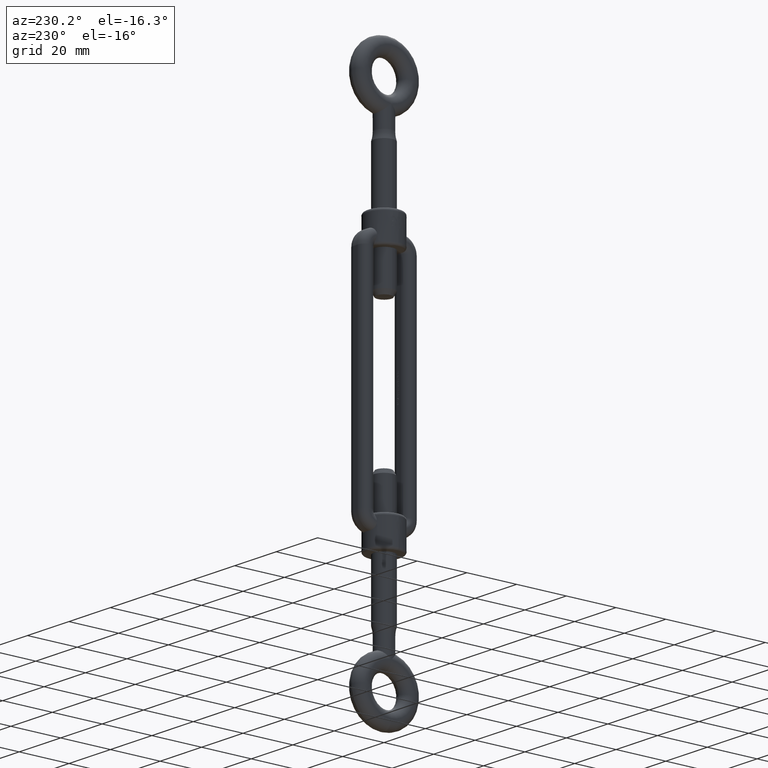
[diagram: clean part render]
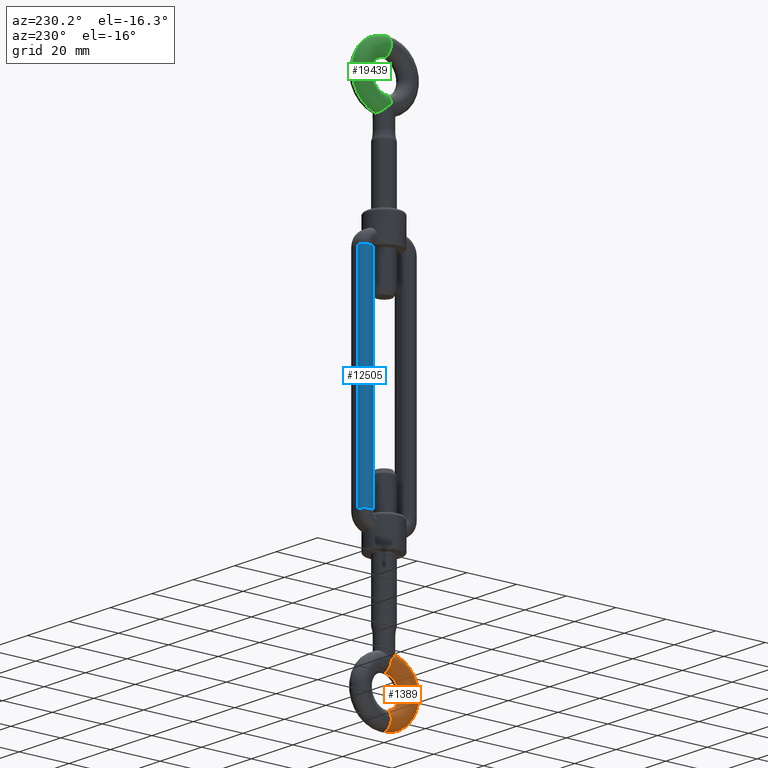
[diagram: same view with three faces highlighted in distinct colors, each labeled with its STEP entity id]
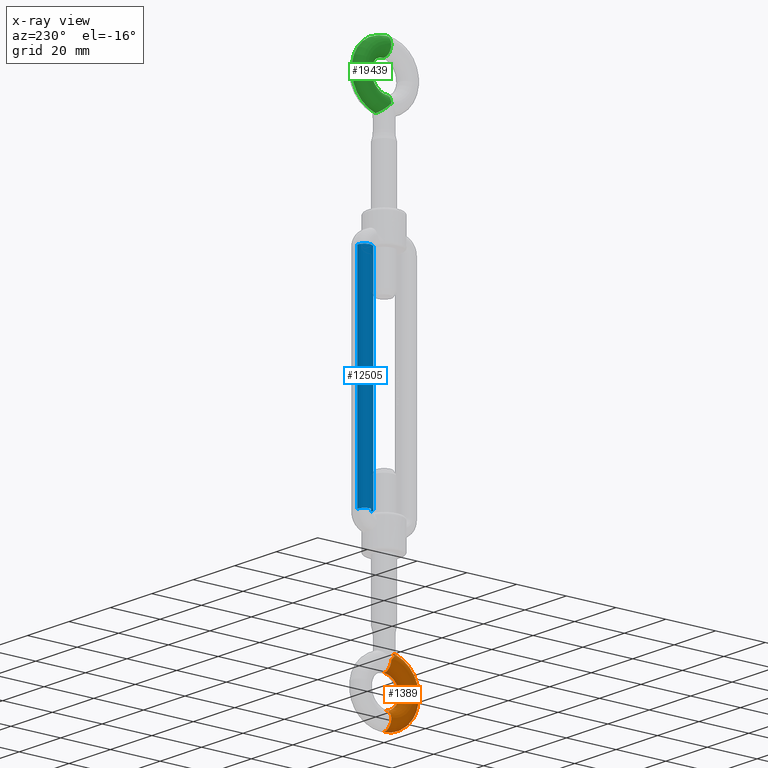
[diagram: x-ray of the same camera — body ghosted, the three highlighted faces saturated]
A machine part, auxiliary view with three faces highlighted in distinct colors.
The next image is the same camera in x-ray (body ghosted, the three faces saturated) — at least one of them is partly hidden behind the body in this view.
Their STEP definitions:

[orange] entity #1389 — the highlighted toroidal blend (fillet) surface has major radius 9.5 mm and minor (blend) radius 3.5 mm.
#746 = DIRECTION ( 'NONE',  ( -0.0000000000000000000, 1.423099621949589700E-016, -1.000000000000000000 ) ) ;
#842 = ORIENTED_EDGE ( 'NONE', *, *, #2792, .T. ) ;
#1058 = CARTESIAN_POINT ( 'NONE',  ( 1.349081180623005400, -23.76627742218699200, -3.236062293113232800 ) ) ;
#1122 = CARTESIAN_POINT ( 'NONE',  ( 0.0000000000000000000, -13.00000000000000000, -9.233182611505365700E-016 ) ) ;
#1198 = CARTESIAN_POINT ( 'NONE',  ( 3.038218404285675200, -25.16484901665855400, -1.756094671193148900 ) ) ;
#1277 = ORIENTED_EDGE ( 'NONE', *, *, #18612, .F. ) ;
#1389 = ADVANCED_FACE ( 'NONE', ( #6877 ), #16581, .T. ) ;
#2544 = CARTESIAN_POINT ( 'NONE',  ( 2.443482613927761900, -24.69173464210464900, -2.516274623144317600 ) ) ;
#2609 = CARTESIAN_POINT ( 'NONE',  ( 2.607361979316100700, -24.82386341213460000, -2.347188748251677600 ) ) ;
#2745 = DIRECTION ( 'NONE',  ( -0.0000000000000000000, 1.423099621949589700E-016, -1.000000000000000000 ) ) ;
#2792 = EDGE_CURVE ( 'NONE', #12631, #15722, #7817, .T. ) ;
#2979 = CARTESIAN_POINT ( 'NONE',  ( 0.0000000000000000000, -3.499999999999999600, 0.0000000000000000000 ) ) ;
#3210 = CIRCLE ( 'NONE', #10819, 6.000000000000000000 ) ;
#4128 = AXIS2_PLACEMENT_3D ( 'NONE', #2979, #7732, #18929 ) ;
#4267 = CARTESIAN_POINT ( 'NONE',  ( 0.3828062570465492500, -22.87582891786317800, -3.480333841708966400 ) ) ;
#4321 = ORIENTED_EDGE ( 'NONE', *, *, #16395, .T. ) ;
#4333 = CARTESIAN_POINT ( 'NONE',  ( 2.095466932062852300, -24.40545312497301500, -2.812696855382467400 ) ) ;
#4589 = CARTESIAN_POINT ( 'NONE',  ( 0.0000000000000000000, -7.000000000000000000, -9.233182611505367700E-016 ) ) ;
#4875 = ORIENTED_EDGE ( 'NONE', *, *, #17145, .F. ) ;
#5186 = DIRECTION ( 'NONE',  ( -0.0000000000000000000, 1.423099621949589700E-016, -1.000000000000000000 ) ) ;
#5311 = VERTEX_POINT ( 'NONE', #20476 ) ;
#5395 = EDGE_CURVE ( 'NONE', #12631, #7546, #6554, .T. ) ;
#5473 = CARTESIAN_POINT ( 'NONE',  ( 0.0000000000000000000, -13.00000000000000000, -1.351944640852110200E-015 ) ) ;
#5589 = CARTESIAN_POINT ( 'NONE',  ( 0.09442472551826826300, -22.59438317329421500, -3.500000000000000900 ) ) ;
#5660 = CARTESIAN_POINT ( 'NONE',  ( 1.541899136454527400, -23.93487640342227600, -3.149353212264888800 ) ) ;
#5852 = CARTESIAN_POINT ( 'NONE',  ( 0.9616300672361402000, -23.41878871928697600, -3.371555547608233300 ) ) ;
#6554 = CIRCLE ( 'NONE', #4128, 3.500000000000000000 ) ;
#6788 = CARTESIAN_POINT ( 'NONE',  ( 3.500000000000000000, -25.51998402554891100, -6.372052715275416000E-014 ) ) ;
#6877 = FACE_OUTER_BOUND ( 'NONE', #14070, .T. ) ;
#7250 = CARTESIAN_POINT ( 'NONE',  ( 3.499999999999995600, -25.51998402554891500, -0.2690677788774187300 ) ) ;
#7546 = VERTEX_POINT ( 'NONE', #4589 ) ;
#7732 = DIRECTION ( 'NONE',  ( -1.000000000000000000, 0.0000000000000000000, 0.0000000000000000000 ) ) ;
#7817 = CIRCLE ( 'NONE', #8463, 13.00000000000000000 ) ;
#8406 = DIRECTION ( 'NONE',  ( -1.224646799147353500E-016, 1.000000000000000000, 0.0000000000000000000 ) ) ;
#8426 = CIRCLE ( 'NONE', #12277, 3.499999999999999600 ) ;
#8463 = AXIS2_PLACEMENT_3D ( 'NONE', #5473, #746, #14932 ) ;
#8547 = CARTESIAN_POINT ( 'NONE',  ( 1.163414459189985500E-015, -22.50000000000000000, -2.703889281704220400E-015 ) ) ;
#8657 = CARTESIAN_POINT ( 'NONE',  ( 8.204153414298522800E-026, -22.50000000000000000, -3.500000000000001300 ) ) ;
#9481 = CARTESIAN_POINT ( 'NONE',  ( 7.347880794884117800E-016, -19.00000000000000000, -9.233182611505363700E-016 ) ) ;
#10574 = CARTESIAN_POINT ( 'NONE',  ( 0.7681063625626209900, -23.24095493967406900, -3.420262490077679900 ) ) ;
#10702 = CARTESIAN_POINT ( 'NONE',  ( 1.914422621104393300, -24.25386458806345800, -2.937833322434440000 ) ) ;
#10819 = AXIS2_PLACEMENT_3D ( 'NONE', #1122, #2745, #13829 ) ;
#11418 = DIRECTION ( 'NONE',  ( 0.0000000000000000000, 1.000000000000000000, 1.423099621949589700E-016 ) ) ;
#12064 = VERTEX_POINT ( 'NONE', #9481 ) ;
#12277 = AXIS2_PLACEMENT_3D ( 'NONE', #8547, #13397, #8406 ) ;
#12631 = VERTEX_POINT ( 'NONE', #16910 ) ;
#13014 = AXIS2_PLACEMENT_3D ( 'NONE', #19358, #5186, #11418 ) ;
#13397 = DIRECTION ( 'NONE',  ( 1.000000000000000000, 1.224646799147353200E-016, 1.742794396888373400E-032 ) ) ;
#13829 = DIRECTION ( 'NONE',  ( 0.0000000000000000000, 1.000000000000000000, 1.423099621949589700E-016 ) ) ;
#14070 = EDGE_LOOP ( 'NONE', ( #16114, #842, #4875, #4321, #1277 ) ) ;
#14082 = B_SPLINE_CURVE_WITH_KNOTS ( 'NONE', 3,
 ( #8657, #5589, #16496, #4267, #20245, #10574, #5852, #1058, #5660, #10702, #4333, #2544, #2609, #16776, #1198, #16915, #15320, #19977, #7250, #16973 ),
 .UNSPECIFIED., .F., .F.,
 ( 4, 2, 2, 2, 2, 2, 2, 2, 2, 4 ),
 ( -1.183216408224241500E-005, 0.0003886897392229493000, 0.0007892116425281409900, 0.001590255449138524400, 0.002391299255748907700, 0.003192343062359291200, 0.003993386868969674700, 0.004794430675580057700, 0.005595474482190441700, 0.006396518288800824700 ),
 .UNSPECIFIED. ) ;
#14932 = DIRECTION ( 'NONE',  ( 0.0000000000000000000, 1.000000000000000000, 1.423099621949589700E-016 ) ) ;
#15320 = CARTESIAN_POINT ( 'NONE',  ( 3.348509140422571800, -25.40458785902059800, -1.052902404016385200 ) ) ;
#15722 = VERTEX_POINT ( 'NONE', #6788 ) ;
#16114 = ORIENTED_EDGE ( 'NONE', *, *, #5395, .F. ) ;
#16395 = EDGE_CURVE ( 'NONE', #5311, #12064, #8426, .T. ) ;
#16496 = CARTESIAN_POINT ( 'NONE',  ( 0.1909517322019405900, -22.68951809136324700, -3.496112371784945600 ) ) ;
#16581 = TOROIDAL_SURFACE ( 'NONE', #13014, 9.500000000000000000, 3.500000000000000000 ) ;
#16776 = CARTESIAN_POINT ( 'NONE',  ( 2.903424072534013700, -25.05939159990898100, -1.969202926600621000 ) ) ;
#16910 = CARTESIAN_POINT ( 'NONE',  ( 0.0000000000000000000, 2.168404344971008900E-016, 4.980848676823563500E-016 ) ) ;
#16915 = CARTESIAN_POINT ( 'NONE',  ( 3.260112574832630300, -25.33691780139961100, -1.298578286339072000 ) ) ;
#16973 = CARTESIAN_POINT ( 'NONE',  ( 3.500000000000000000, -25.51998402554891100, -6.372052715275416000E-014 ) ) ;
#17145 = EDGE_CURVE ( 'NONE', #5311, #15722, #14082, .T. ) ;
#18612 = EDGE_CURVE ( 'NONE', #7546, #12064, #3210, .T. ) ;
#18929 = DIRECTION ( 'NONE',  ( 0.0000000000000000000, 0.0000000000000000000, 1.000000000000000000 ) ) ;
#19358 = CARTESIAN_POINT ( 'NONE',  ( 0.0000000000000000000, -13.00000000000000000, -1.351944640852110200E-015 ) ) ;
#19977 = CARTESIAN_POINT ( 'NONE',  ( 3.469376988827108200, -25.49681115612488800, -0.5334231390499877300 ) ) ;
#20245 = CARTESIAN_POINT ( 'NONE',  ( 0.4789872670602362500, -22.96790059997997000, -3.468445893956622500 ) ) ;
#20476 = CARTESIAN_POINT ( 'NONE',  ( 8.204153414298522800E-026, -22.50000000000000000, -3.500000000000001300 ) ) ;

[blue] entity #12505 — the highlighted cylindrical surface (edge-blend (fillet) strip) has radius 2.75 mm, axis along (0, -0, -1).
#900 = EDGE_CURVE ( 'NONE', #11252, #6656, #13601, .T. ) ;
#1407 = CIRCLE ( 'NONE', #5247, 2.749999999999995600 ) ;
#1748 = DIRECTION ( 'NONE',  ( 0.0000000000000000000, -3.061276722312012700E-017, -1.000000000000000000 ) ) ;
#1980 = EDGE_CURVE ( 'NONE', #19460, #19859, #16075, .T. ) ;
#2039 = DIRECTION ( 'NONE',  ( 0.0000000000000000000, 1.000000000000000000, 0.0000000000000000000 ) ) ;
#2120 = EDGE_CURVE ( 'NONE', #11252, #19460, #1407, .T. ) ;
#3194 = CARTESIAN_POINT ( 'NONE',  ( -0.9999999999999974500, 11.50000000000000400, 42.49999999999998600 ) ) ;
#3524 = DIRECTION ( 'NONE',  ( 0.0000000000000000000, 1.000000000000000000, 0.0000000000000000000 ) ) ;
#3659 = CYLINDRICAL_SURFACE ( 'NONE', #9725, 2.749999999999995600 ) ;
#4701 = CARTESIAN_POINT ( 'NONE',  ( -0.9999999999999974500, 11.50000000000000000, -42.50000000000000000 ) ) ;
#4842 = CARTESIAN_POINT ( 'NONE',  ( -0.9999999999999974500, 11.50000000000000400, 42.49999999999998600 ) ) ;
#4876 = FACE_OUTER_BOUND ( 'NONE', #14318, .T. ) ;
#4908 = ORIENTED_EDGE ( 'NONE', *, *, #15220, .F. ) ;
#5247 = AXIS2_PLACEMENT_3D ( 'NONE', #8539, #9837, #3524 ) ;
#6656 = VERTEX_POINT ( 'NONE', #9470 ) ;
#8539 = CARTESIAN_POINT ( 'NONE',  ( -0.9999999999999974500, 8.750000000000007100, 42.49999999999998600 ) ) ;
#8634 = VECTOR ( 'NONE', #17704, 1000.000000000000000 ) ;
#9470 = CARTESIAN_POINT ( 'NONE',  ( -0.9999999999999974500, 6.000000000000009800, -42.50000000000000000 ) ) ;
#9717 = CARTESIAN_POINT ( 'NONE',  ( -0.9999999999999974500, 6.000000000000012400, 42.49999999999998600 ) ) ;
#9725 = AXIS2_PLACEMENT_3D ( 'NONE', #10906, #1748, #11302 ) ;
#9837 = DIRECTION ( 'NONE',  ( 0.0000000000000000000, 6.123233995736766000E-017, -1.000000000000000000 ) ) ;
#10111 = ORIENTED_EDGE ( 'NONE', *, *, #900, .F. ) ;
#10906 = CARTESIAN_POINT ( 'NONE',  ( -0.9999999999999974500, 8.750000000000007100, 42.49999999999998600 ) ) ;
#11047 = CIRCLE ( 'NONE', #18152, 2.749999999999995600 ) ;
#11252 = VERTEX_POINT ( 'NONE', #9717 ) ;
#11302 = DIRECTION ( 'NONE',  ( 0.0000000000000000000, 1.000000000000000000, 0.0000000000000000000 ) ) ;
#11569 = ORIENTED_EDGE ( 'NONE', *, *, #2120, .T. ) ;
#12505 = ADVANCED_FACE ( 'NONE', ( #4876 ), #3659, .T. ) ;
#13601 = LINE ( 'NONE', #14713, #8634 ) ;
#14318 = EDGE_LOOP ( 'NONE', ( #11569, #14751, #4908, #10111 ) ) ;
#14713 = CARTESIAN_POINT ( 'NONE',  ( -0.9999999999999974500, 6.000000000000012400, 42.49999999999998600 ) ) ;
#14751 = ORIENTED_EDGE ( 'NONE', *, *, #1980, .T. ) ;
#15220 = EDGE_CURVE ( 'NONE', #6656, #19859, #11047, .T. ) ;
#16075 = LINE ( 'NONE', #3194, #19536 ) ;
#16136 = DIRECTION ( 'NONE',  ( 0.0000000000000000000, 6.123233995736766000E-017, -1.000000000000000000 ) ) ;
#17704 = DIRECTION ( 'NONE',  ( 0.0000000000000000000, -3.061276722312012700E-017, -1.000000000000000000 ) ) ;
#18152 = AXIS2_PLACEMENT_3D ( 'NONE', #19390, #16136, #2039 ) ;
#19222 = DIRECTION ( 'NONE',  ( 0.0000000000000000000, -3.061276722312012700E-017, -1.000000000000000000 ) ) ;
#19390 = CARTESIAN_POINT ( 'NONE',  ( -0.9999999999999974500, 8.750000000000003600, -42.50000000000000000 ) ) ;
#19460 = VERTEX_POINT ( 'NONE', #4842 ) ;
#19536 = VECTOR ( 'NONE', #19222, 1000.000000000000000 ) ;
#19859 = VERTEX_POINT ( 'NONE', #4701 ) ;

[green] entity #19439 — the highlighted toroidal blend (fillet) surface has major radius 9.5 mm and minor (blend) radius 3.5 mm.
#343 = DIRECTION ( 'NONE',  ( 0.0000000000000000000, 0.0000000000000000000, 1.000000000000000000 ) ) ;
#364 = DIRECTION ( 'NONE',  ( 0.0000000000000000000, 1.000000000000000000, 1.423099621949589500E-016 ) ) ;
#414 = DIRECTION ( 'NONE',  ( -1.000000000000000000, 0.0000000000000000000, 0.0000000000000000000 ) ) ;
#735 = CARTESIAN_POINT ( 'NONE',  ( -1.913564979457376400, -24.25313479733692300, 2.938350525971378200 ) ) ;
#872 = CARTESIAN_POINT ( 'NONE',  ( -0.9660025164281341700, -23.42276346731112800, 3.370265086469987500 ) ) ;
#1259 = VERTEX_POINT ( 'NONE', #15696 ) ;
#1944 = DIRECTION ( 'NONE',  ( -1.224646799147353500E-016, 1.000000000000000000, 0.0000000000000000000 ) ) ;
#2097 = DIRECTION ( 'NONE',  ( 0.0000000000000000000, 1.000000000000000000, 1.423099621949589500E-016 ) ) ;
#2128 = CIRCLE ( 'NONE', #19797, 13.00000000000000000 ) ;
#2172 = CARTESIAN_POINT ( 'NONE',  ( 0.0000000000000000000, -13.00000000000000000, -1.351944640852110000E-015 ) ) ;
#2359 = CARTESIAN_POINT ( 'NONE',  ( -0.3832231363631551900, -22.87748096506440400, 3.484484169648094800 ) ) ;
#2736 = AXIS2_PLACEMENT_3D ( 'NONE', #16115, #6580, #1944 ) ;
#3157 = EDGE_CURVE ( 'NONE', #17490, #7172, #2128, .T. ) ;
#4987 = EDGE_CURVE ( 'NONE', #1259, #14080, #6052, .T. ) ;
#5146 = CARTESIAN_POINT ( 'NONE',  ( 0.0000000000000000000, -13.00000000000000000, -1.351944640852110000E-015 ) ) ;
#5507 = VERTEX_POINT ( 'NONE', #18629 ) ;
#5643 = EDGE_LOOP ( 'NONE', ( #15346, #17959, #14726, #20203, #14454 ) ) ;
#5743 = CARTESIAN_POINT ( 'NONE',  ( -3.500000000000000000, -25.51998402554891100, -5.951652351457773900E-013 ) ) ;
#6052 = CIRCLE ( 'NONE', #19665, 6.000000000000000000 ) ;
#6580 = DIRECTION ( 'NONE',  ( 1.000000000000000000, 1.224646799147353200E-016, 1.742794396888373100E-032 ) ) ;
#6920 = CARTESIAN_POINT ( 'NONE',  ( -2.443580703752036100, -24.69180862781461300, 2.516116954182410700 ) ) ;
#7064 = CARTESIAN_POINT ( 'NONE',  ( -0.1904927203787495400, -22.69040889275829500, 3.499999999999998700 ) ) ;
#7137 = CARTESIAN_POINT ( 'NONE',  ( -1.542006865706202000, -23.93496404227113000, 3.149261750029190000 ) ) ;
#7172 = VERTEX_POINT ( 'NONE', #11652 ) ;
#7659 = FACE_OUTER_BOUND ( 'NONE', #5643, .T. ) ;
#8749 = CARTESIAN_POINT ( 'NONE',  ( -3.500000000000000000, -25.51998402554891100, -5.951652351457773900E-013 ) ) ;
#9708 = DIRECTION ( 'NONE',  ( -0.0000000000000000000, 1.423099621949589500E-016, -1.000000000000000000 ) ) ;
#10188 = CARTESIAN_POINT ( 'NONE',  ( -2.606170574915819500, -24.82291462541087100, 2.348687271651368900 ) ) ;
#10254 = CARTESIAN_POINT ( 'NONE',  ( -2.904367264154950900, -25.06014292350209200, 1.968021280494519900 ) ) ;
#10399 = CARTESIAN_POINT ( 'NONE',  ( -3.037614766546747400, -25.16437745664323700, 1.757096798617128600 ) ) ;
#10577 = CIRCLE ( 'NONE', #20283, 3.500000000000000000 ) ;
#11652 = CARTESIAN_POINT ( 'NONE',  ( 0.0000000000000000000, 2.168404344971008900E-016, 4.980848676823563500E-016 ) ) ;
#11696 = CARTESIAN_POINT ( 'NONE',  ( -0.7702363488527995700, -23.24294299762100000, 3.419828338919672200 ) ) ;
#11845 = CARTESIAN_POINT ( 'NONE',  ( -3.468395315368932900, -25.49606316611445700, 0.5381845601431528600 ) ) ;
#11979 = CARTESIAN_POINT ( 'NONE',  ( -3.348747814678110200, -25.40476892724715800, 1.051330946057529100 ) ) ;
#13386 = TOROIDAL_SURFACE ( 'NONE', #14295, 9.500000000000000000, 3.500000000000000000 ) ;
#14080 = VERTEX_POINT ( 'NONE', #17825 ) ;
#14295 = AXIS2_PLACEMENT_3D ( 'NONE', #2172, #9708, #2097 ) ;
#14454 = ORIENTED_EDGE ( 'NONE', *, *, #15282, .T. ) ;
#14626 = CARTESIAN_POINT ( 'NONE',  ( 0.0000000000000000000, -13.00000000000000000, -9.233182611505361800E-016 ) ) ;
#14726 = ORIENTED_EDGE ( 'NONE', *, *, #15690, .F. ) ;
#14920 = CARTESIAN_POINT ( 'NONE',  ( -1.352052117069483900, -23.76888762629154100, 3.234780160621734300 ) ) ;
#14988 = CARTESIAN_POINT ( 'NONE',  ( -3.821045009664275900E-028, -22.50000000000000000, 3.500000000000049700 ) ) ;
#15282 = EDGE_CURVE ( 'NONE', #14080, #7172, #10577, .T. ) ;
#15346 = ORIENTED_EDGE ( 'NONE', *, *, #3157, .F. ) ;
#15690 = EDGE_CURVE ( 'NONE', #1259, #5507, #17883, .T. ) ;
#15696 = CARTESIAN_POINT ( 'NONE',  ( 7.347880794884117800E-016, -19.00000000000000000, -9.233182611505355900E-016 ) ) ;
#16068 = DIRECTION ( 'NONE',  ( 0.0000000000000000000, 1.000000000000000000, 1.423099621949589500E-016 ) ) ;
#16115 = CARTESIAN_POINT ( 'NONE',  ( 1.163414459189985500E-015, -22.50000000000000000, -2.703889281704220000E-015 ) ) ;
#16289 = DIRECTION ( 'NONE',  ( -0.0000000000000000000, 1.423099621949589500E-016, -1.000000000000000000 ) ) ;
#16444 = CARTESIAN_POINT ( 'NONE',  ( -2.096685723666016400, -24.40646239496742400, 2.811732590245484200 ) ) ;
#17148 = B_SPLINE_CURVE_WITH_KNOTS ( 'NONE', 3,
 ( #14988, #7064, #2359, #11696, #872, #14920, #7137, #735, #16444, #6920, #10188, #10254, #10399, #19641, #11979, #11845, #18263, #8749 ),
 .UNSPECIFIED., .F., .F.,
 ( 4, 2, 2, 2, 2, 2, 2, 2, 4 ),
 ( -1.183216408224513200E-005, 0.0007961819074963323900, 0.001604195979074909800, 0.002412210050653488000, 0.003220224122232065900, 0.004028238193810642800, 0.004836252265389220200, 0.005644266336967797600, 0.006452280408546375000 ),
 .UNSPECIFIED. ) ;
#17413 = EDGE_CURVE ( 'NONE', #5507, #17490, #17148, .T. ) ;
#17490 = VERTEX_POINT ( 'NONE', #5743 ) ;
#17825 = CARTESIAN_POINT ( 'NONE',  ( 0.0000000000000000000, -7.000000000000000000, -9.233182611505363700E-016 ) ) ;
#17883 = CIRCLE ( 'NONE', #2736, 3.499999999999999600 ) ;
#17959 = ORIENTED_EDGE ( 'NONE', *, *, #17413, .F. ) ;
#18263 = CARTESIAN_POINT ( 'NONE',  ( -3.500000000000046200, -25.51998402554895400, 0.2667777851580244200 ) ) ;
#18629 = CARTESIAN_POINT ( 'NONE',  ( -3.821045009664275900E-028, -22.50000000000000000, 3.500000000000049700 ) ) ;
#19320 = DIRECTION ( 'NONE',  ( -0.0000000000000000000, 1.423099621949589500E-016, -1.000000000000000000 ) ) ;
#19321 = CARTESIAN_POINT ( 'NONE',  ( 0.0000000000000000000, -3.499999999999999600, 0.0000000000000000000 ) ) ;
#19439 = ADVANCED_FACE ( 'NONE', ( #7659 ), #13386, .T. ) ;
#19641 = CARTESIAN_POINT ( 'NONE',  ( -3.259446454499980400, -25.33640470229482800, 1.300192847196493400 ) ) ;
#19665 = AXIS2_PLACEMENT_3D ( 'NONE', #14626, #16289, #364 ) ;
#19797 = AXIS2_PLACEMENT_3D ( 'NONE', #5146, #19320, #16068 ) ;
#20203 = ORIENTED_EDGE ( 'NONE', *, *, #4987, .T. ) ;
#20283 = AXIS2_PLACEMENT_3D ( 'NONE', #19321, #414, #343 ) ;